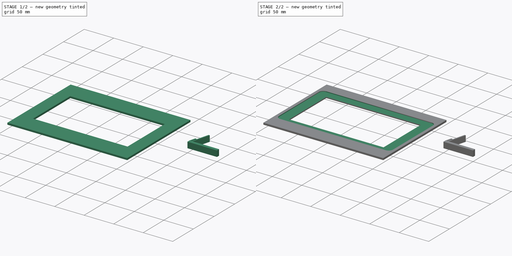
[diagram: build sequence overview — one tinted view per stage of 2, left to right]
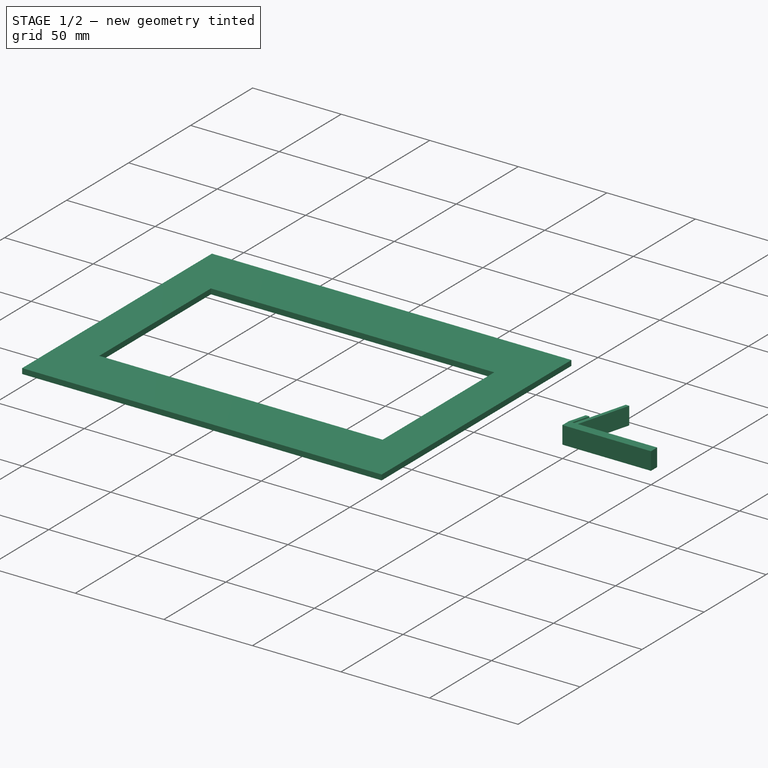
[diagram: stage 1 of 2 — iso view after this stage's code; geometry added in this stage tinted green]
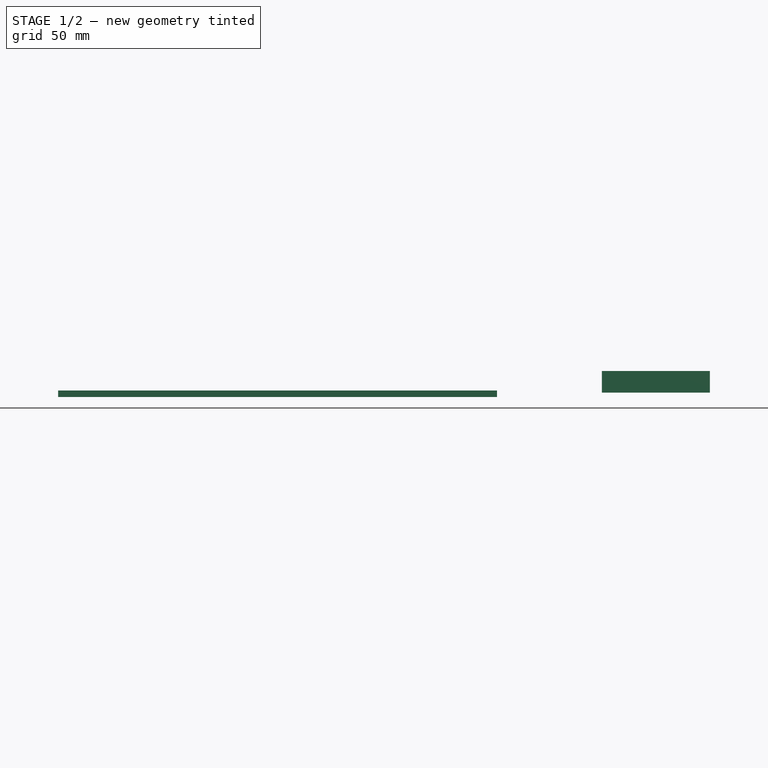
[diagram: stage 1 of 2 — front view after this stage's code; geometry added in this stage tinted green]
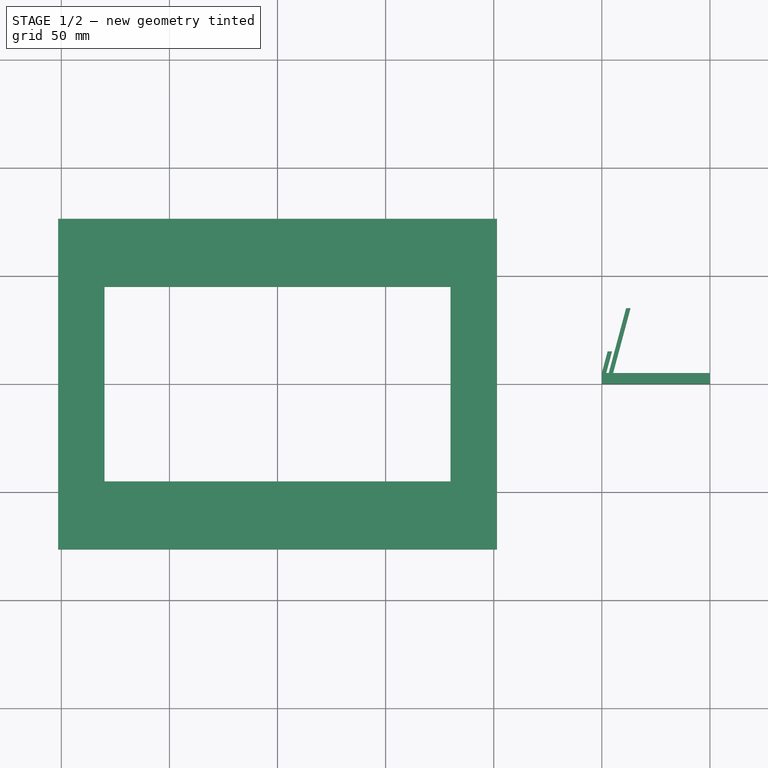
[diagram: stage 1 of 2 — top view after this stage's code; geometry added in this stage tinted green]
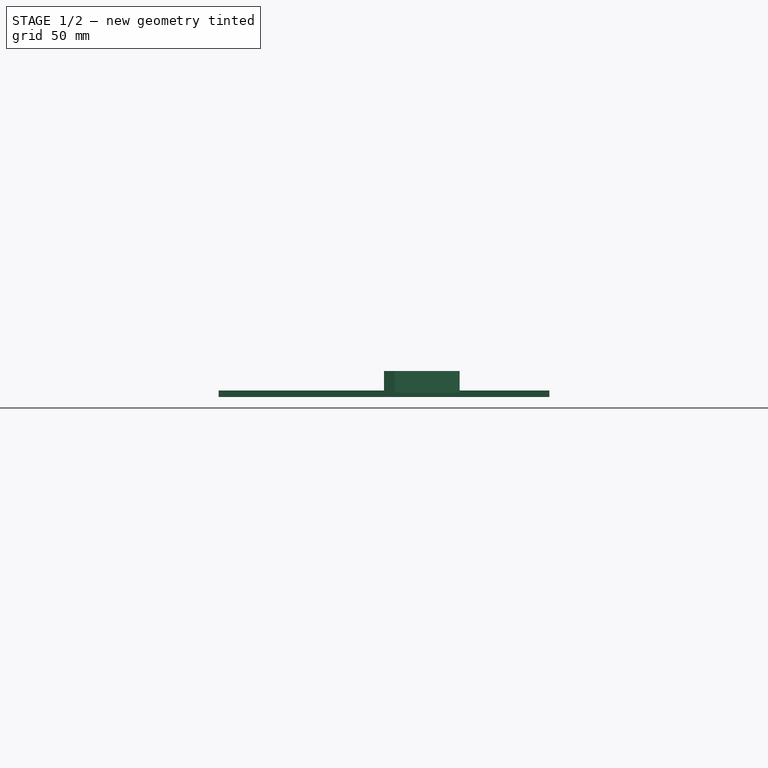
[diagram: stage 1 of 2 — right view after this stage's code; geometry added in this stage tinted green]
FCSTD DOCUMENT  (FreeCAD 1.0R39109 (Git))
Label: Frame7LCD
License: All rights reserved
LicenseURL: https://en.wikipedia.org/wiki/All_rights_reserved
objects: Sketcher::SketchObject×3, PartDesign::Pad×2, PartDesign::Body×2, PartDesign::Plane×1, PartDesign::Pocket×1
note: 18 computed .brp shape members not serialized (recipe doc carries the construction recipe); baked Part::Feature solids carry a one-line shape summary decoded from their .brp

FEATURE [PartDesign::Plane] DatumPlane
  AttachmentSupport = -> [XY_Plane]
  Length = 238.247
  MapMode = 5
  ResizeMode = 0
  Width = 188.247
FEATURE [Sketcher::SketchObject] Sketch  label="FrameBaseS"
  ArcFitTolerance = 0
  AttachmentOffset = pos=(0,0,-2) rot=(0,0,1;0rad)
  AttachmentSupport = -> [DatumPlane]
  FullyConstrained = true
  MakeInternals = false
  MapMode = 5
  Placement = pos=(0,0,-2) rot=(0,0,1;0rad)
  sketch-geometry (10):
    g0: LineSegment StartX=-101.5 StartY=-76.5 StartZ=0 EndX=-101.5 EndY=76.5 EndZ=0
    g1: LineSegment StartX=-101.5 StartY=76.5 StartZ=0 EndX=101.5 EndY=76.5 EndZ=0
    g2: LineSegment StartX=101.5 StartY=76.5 StartZ=0 EndX=101.5 EndY=-76.5 EndZ=0
    g3: LineSegment StartX=101.5 StartY=-76.5 StartZ=0 EndX=-101.5 EndY=-76.5 EndZ=0
    g4: GeomPoint [constr] X=-1e-16 Y=-2e-16 Z=0
    g5: LineSegment StartX=-80 StartY=-45 StartZ=0 EndX=-80 EndY=45 EndZ=0
    g6: LineSegment StartX=-80 StartY=45 StartZ=0 EndX=80 EndY=45 EndZ=0
    g7: LineSegment StartX=80 StartY=45 StartZ=0 EndX=80 EndY=-45 EndZ=0
    g8: LineSegment StartX=80 StartY=-45 StartZ=0 EndX=-80 EndY=-45 EndZ=0
    g9: GeomPoint [constr] X=-1e-16 Y=-2e-16 Z=0
  constraints (24):
    c: Coincident(g0,g1)
    c: Coincident(g1,g2)
    c: Coincident(g2,g3)
    c: Coincident(g3,g0)
    c: Horizontal(g1)
    c: Horizontal(g3)
    c: Vertical(g0)
    c: Vertical(g2)
    c: Symmetric(g1,g0,g4)
    c: Coincident(g4,g-1)
    c: DistanceY(g0,g0) = 153  'Frame Height'
    c: DistanceX(g1,g1) = 203  'Frame Width'
    c: Coincident(g5,g6)
    c: Coincident(g6,g7)
    c: Coincident(g7,g8)
    c: Coincident(g8,g5)
    c: Horizontal(g6)
    c: Horizontal(g8)
    c: Vertical(g5)
    c: Vertical(g7)
    c: Symmetric(g6,g5,g9)
    c: Coincident(g9,g4)
    c: DistanceX(g6,g6) = 160  'OpeningWidth'
    c: DistanceY(g5,g5) = 90  'OpeningHeight'
FEATURE [PartDesign::Pad] Pad  label="FrameBase"
  Direction = (0,0,1)
  Length = 3
  Length2 = 10
  Profile = -> Sketch
  ReferenceAxis = -> Sketch [N_Axis]
  Suppressed = false
  Type = 0
FEATURE [PartDesign::Body] Body  label="FrameFront"
  AllowCompound = false
  Group = -> [DatumPlane,Sketch,Pad,Sketch001,Pocket]
  Origin = -> Origin
  Tip = -> Pocket
FEATURE [Sketcher::SketchObject] Sketch002
  ArcFitTolerance = 1e-06
  AttachmentSupport = -> [XY_Plane001]
  FullyConstrained = true
  MakeInternals = false
  MapMode = 5
  sketch-geometry (11):
    g0: LineSegment StartX=150 StartY=0 StartZ=0 EndX=200 EndY=0 EndZ=0
    g1: LineSegment StartX=200 StartY=0 StartZ=0 EndX=200 EndY=5 EndZ=0
    g2: LineSegment StartX=200 StartY=5 StartZ=0 EndX=155.2 EndY=5 EndZ=0
    g3: LineSegment StartX=155.2 StartY=5 StartZ=0 EndX=163.238 EndY=35 EndZ=0
    g4: LineSegment StartX=163.238 StartY=35 StartZ=0 EndX=161.238 EndY=35 EndZ=0
    g5: LineSegment StartX=161.238 StartY=35 StartZ=0 EndX=153.2 EndY=5 EndZ=0
    g6: LineSegment StartX=153.2 StartY=5 StartZ=0 EndX=152 EndY=5 EndZ=0
    g7: LineSegment StartX=152 StartY=5 StartZ=0 EndX=154.679 EndY=15 EndZ=0
    g8: LineSegment StartX=154.679 StartY=15 StartZ=0 EndX=152.679 EndY=15 EndZ=0
    g9: LineSegment StartX=152.679 StartY=15 StartZ=0 EndX=150 EndY=5 EndZ=0
    g10: LineSegment StartX=150 StartY=5 StartZ=0 EndX=150 EndY=0 EndZ=0
  constraints (33):
    c: PointOnObject(g0,g-1)
    c: Horizontal(g0)
    c: Coincident(g0,g1)
    c: Coincident(g1,g2)
    c: Horizontal(g2)
    c: Coincident(g2,g3)
    c: Coincident(g3,g4)
    c: Horizontal(g4)
    c: Coincident(g4,g5)
    c: Coincident(g5,g6)
    c: Coincident(g6,g7)
    c: Coincident(g7,g8)
    c: Horizontal(g8)
    c: Coincident(g8,g9)
    c: Coincident(g9,g10)
    c: Coincident(g10,g0)
    c: Vertical(g10)
    c: Horizontal(g6)
    c: Parallel(g9,g7)
    c: Parallel(g7,g5)
    c: Parallel(g5,g3)
    c: Equal(g9,g7)
    c: Equal(g5,g3)
    c: Distance(g10,g10) = 5
    c: Distance(g8,g8) = 2
    c: Distance(g4,g4) = 2
    c: DistanceY(g9,g8) = 10
    c: DistanceY(g9,g4) = 30
    c: DistanceX(g0,g0) = 50
    c: Vertical(g1)
    c: Distance(g0,g-2) = 150
    c: DistanceX(g6,g6) = 1.2
    c: Angle(g2,g3) = 1.309
FEATURE [PartDesign::Pad] Pad001
  Direction = (0,0,1)
  Length = 10
  Length2 = 10
  Profile = -> Sketch002
  ReferenceAxis = -> Sketch002 [N_Axis]
  Refine = true
  Suppressed = false
  Type = 0
FEATURE [PartDesign::Body] Body001  label="Stand"
  AllowCompound = false
  Group = -> [Sketch002,Pad001]
  Origin = -> Origin001
  Tip = -> Pad001
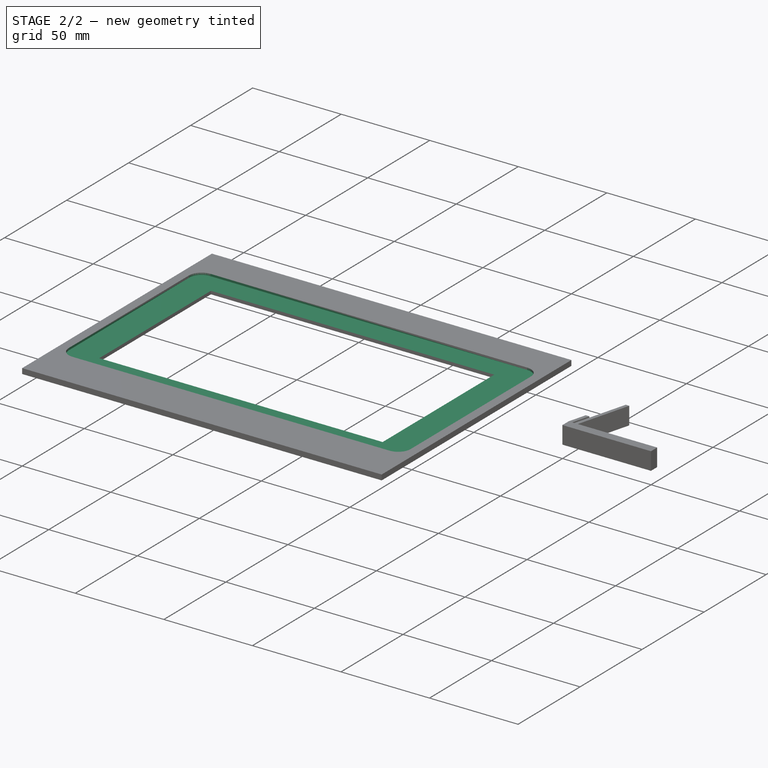
[diagram: stage 2 of 2 — iso view after this stage's code; geometry added in this stage tinted green]
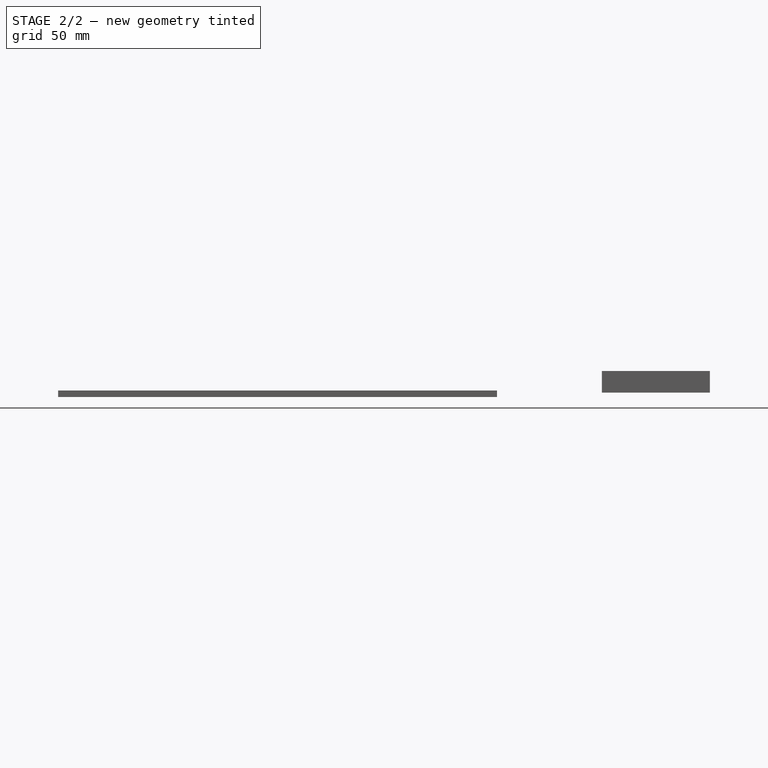
[diagram: stage 2 of 2 — front view after this stage's code; geometry added in this stage tinted green]
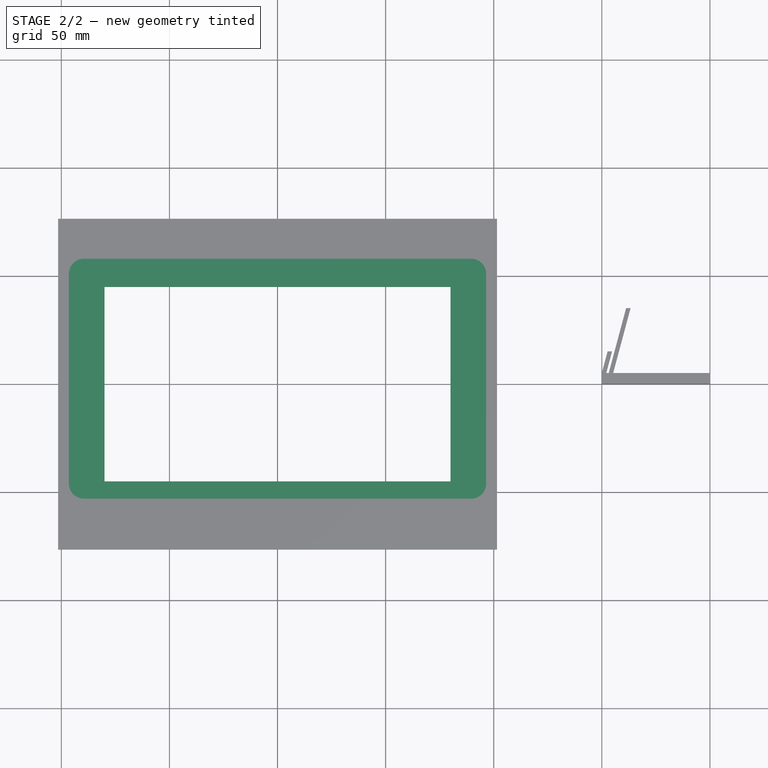
[diagram: stage 2 of 2 — top view after this stage's code; geometry added in this stage tinted green]
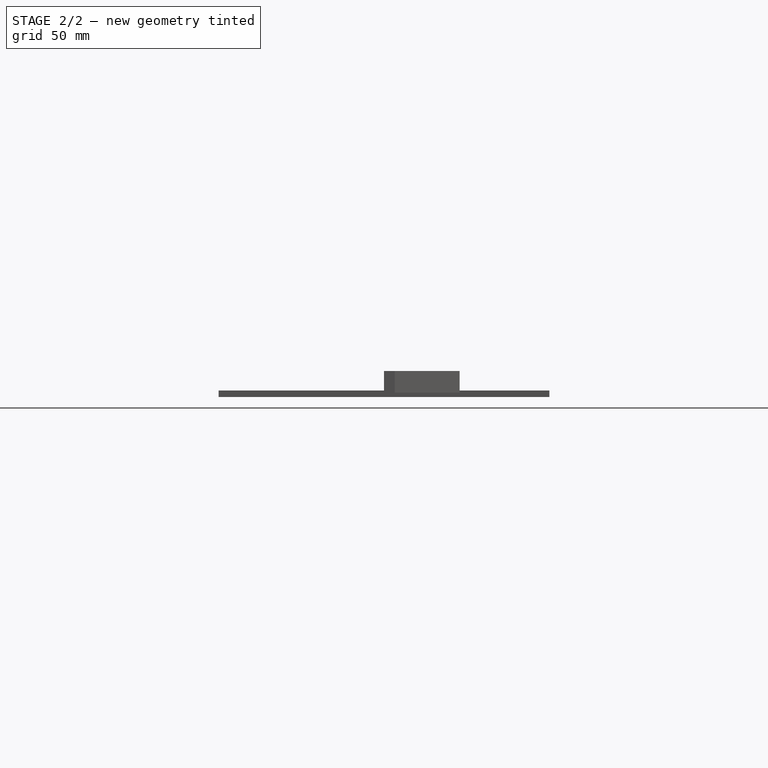
[diagram: stage 2 of 2 — right view after this stage's code; geometry added in this stage tinted green]
FEATURE [Sketcher::SketchObject] Sketch001  label="ScreenRecessS"
  ArcFitTolerance = 1e-06
  AttachmentSupport = -> [Pad]
  ExternalGeometry = -> [Pad]
  FullyConstrained = true
  MakeInternals = false
  MapMode = 5
  Placement = pos=(0,0,1) rot=(0,0,1;0rad)
  sketch-geometry (13):
    g0: LineSegment StartX=-96.5 StartY=51 StartZ=0 EndX=-96.5 EndY=-46 EndZ=0
    g1: LineSegment StartX=-89.5 StartY=-53 StartZ=0 EndX=89.5 EndY=-53 EndZ=0
    g2: LineSegment StartX=96.5 StartY=-46 StartZ=0 EndX=96.5 EndY=51 EndZ=0
    g3: LineSegment StartX=89.5 StartY=58 StartZ=0 EndX=-89.5 EndY=58 EndZ=0
    g4: GeomPoint [constr] X=0 Y=2.5 Z=0
    g5: ArcOfCircle CenterX=-89.5 CenterY=51 CenterZ=0 NormalX=0 NormalY=0 NormalZ=1 AngleXU=0 Radius=7 StartAngle=1.5708 EndAngle=3.14159
    g6: GeomPoint [constr] X=-96.5 Y=58 Z=0
    g7: ArcOfCircle CenterX=89.5 CenterY=51 CenterZ=0 NormalX=0 NormalY=0 NormalZ=1 AngleXU=0 Radius=7 StartAngle=0 EndAngle=1.5708
    g8: GeomPoint [constr] X=96.5 Y=58 Z=0
    g9: ArcOfCircle CenterX=89.5 CenterY=-46 CenterZ=0 NormalX=0 NormalY=0 NormalZ=1 AngleXU=0 Radius=7 StartAngle=4.71239 EndAngle=6.28319
    g10: GeomPoint [constr] X=96.5 Y=-53 Z=0
    g11: ArcOfCircle CenterX=-89.5 CenterY=-46 CenterZ=0 NormalX=0 NormalY=0 NormalZ=1 AngleXU=0 Radius=7 StartAngle=3.14159 EndAngle=4.71239
    g12: GeomPoint [constr] X=-96.5 Y=-53 Z=0
  constraints (29):
    c: Vertical(g0)
    c: Vertical(g2)
    c: Horizontal(g1)
    c: Horizontal(g3)
    c: Symmetric(g10,g6,g4)
    c: DistanceX(g6,g8) = 193
    c: DistanceY(g12,g6) = 111
    c: PointOnObject(g6,g0)
    c: PointOnObject(g6,g3)
    c: Tangent(g0,g5) = -1.5708
    c: Tangent(g3,g5) = -1.5708
    c: PointOnObject(g8,g3)
    c: PointOnObject(g8,g2)
    c: Tangent(g3,g7) = -1.5708
    c: Tangent(g2,g7) = -1.5708
    c: PointOnObject(g10,g2)
    c: PointOnObject(g10,g1)
    c: Tangent(g2,g9) = -1.5708
    c: Tangent(g1,g9) = -1.5708
    c: PointOnObject(g12,g1)
    c: PointOnObject(g12,g0)
    c: Tangent(g1,g11) = -1.5708
    c: Tangent(g0,g11) = -1.5708
    c: Radius(g5) = 7
    c: Radius(g7) = 7
    c: Radius(g9) = 7
    c: Radius(g11) = 7
    c: PointOnObject(g4,g-2)
    c: Distance(g3,g-3) = 13
FEATURE [PartDesign::Pocket] Pocket  label="ScreenRecess"
  BaseFeature = -> Pad
  Direction = (0,0,-1)
  Length = 1.2
  Length2 = 5
  Profile = -> Sketch001
  ReferenceAxis = -> Sketch001 [N_Axis]
  Refine = true
  Suppressed = false
  Type = 0
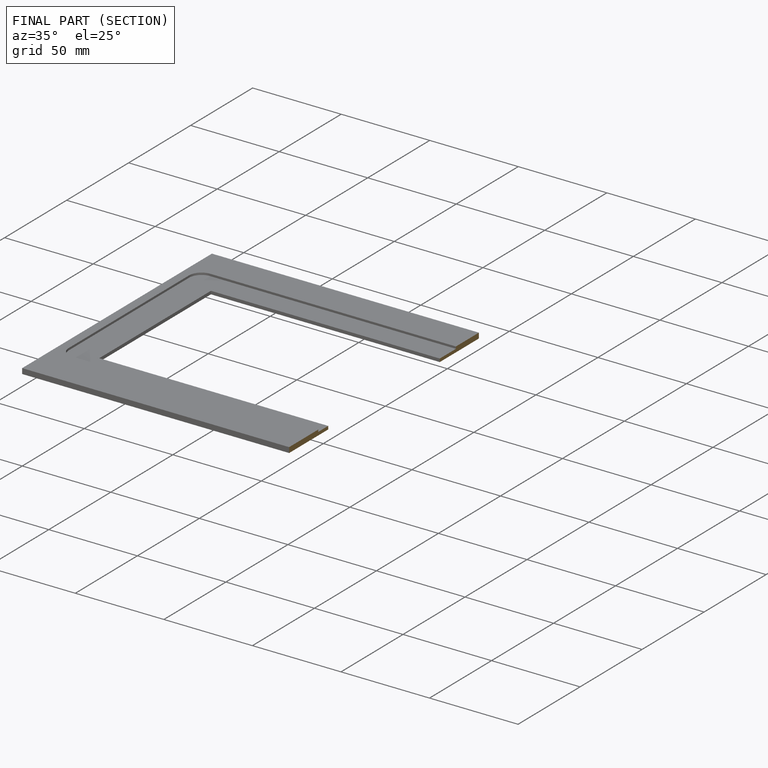
[diagram: finished part — half-section view (interior)]
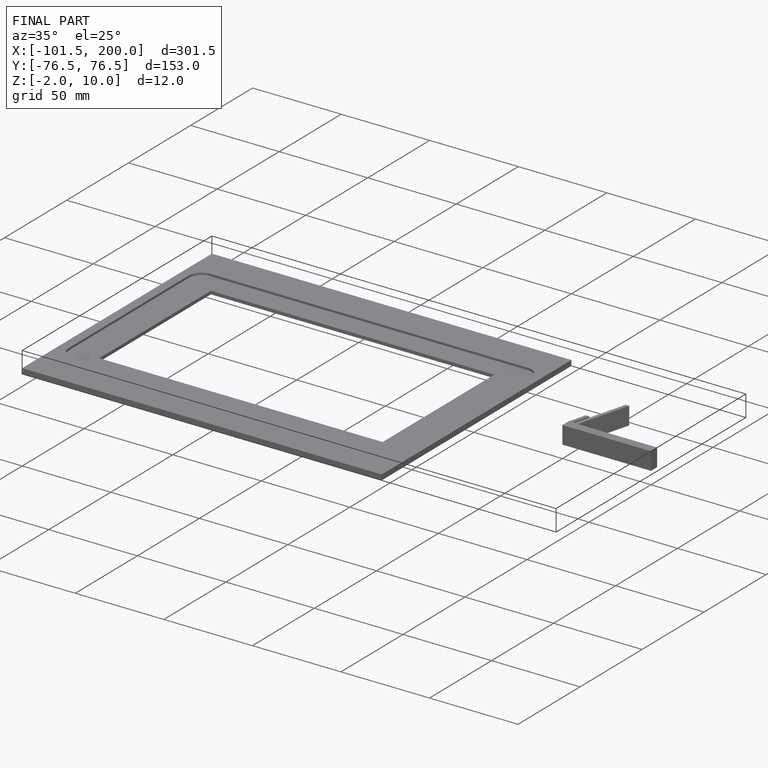
[diagram: finished part — iso view with bounding-box wireframe]
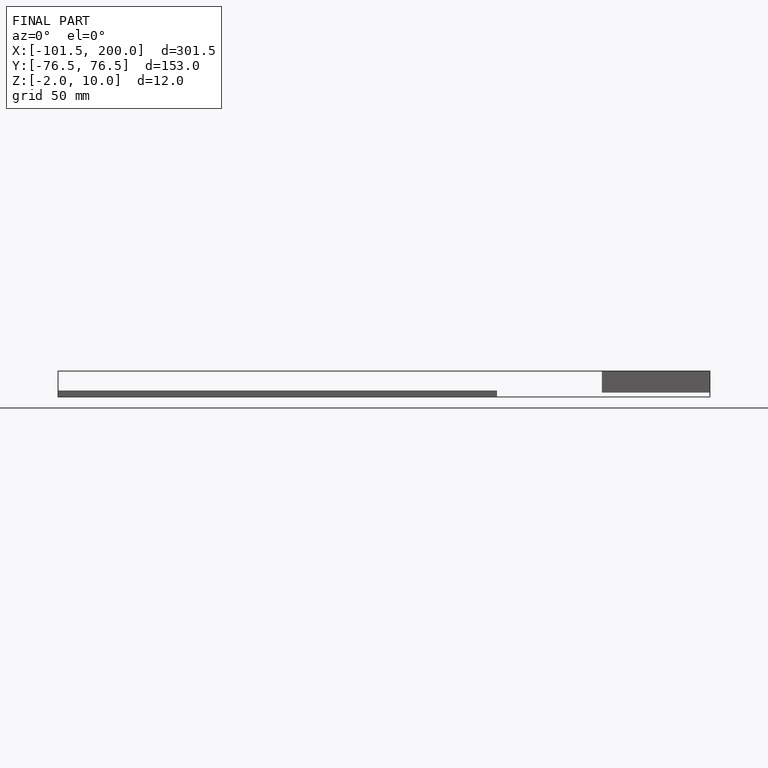
[diagram: finished part — front view with bounding-box wireframe]
